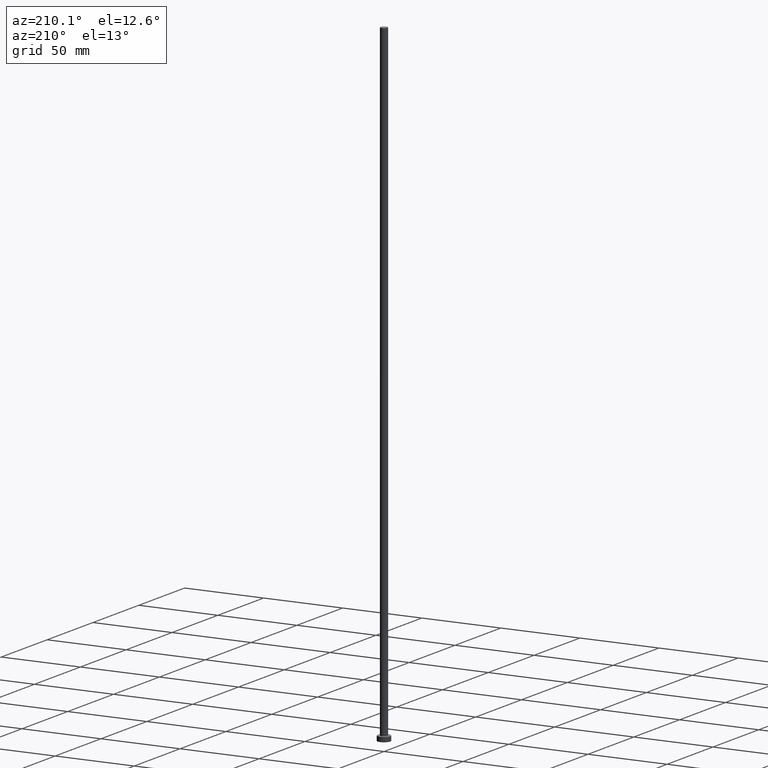
[diagram: clean part render]
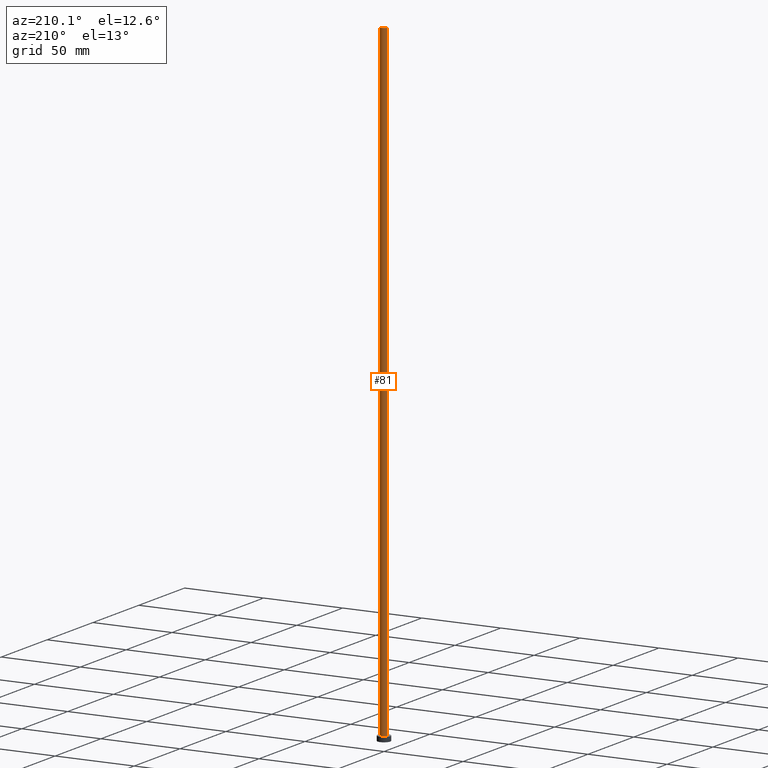
[diagram: same view with one face highlighted and labeled with its STEP entity id]
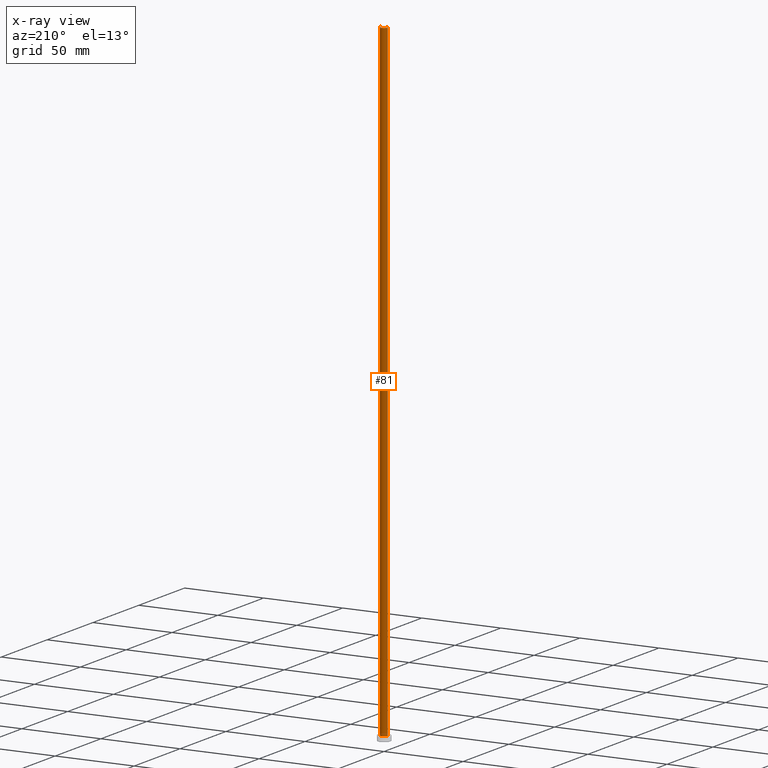
[diagram: x-ray of the same camera — body ghosted, the highlighted face saturated]
A machine part, auxiliary view. The second image highlights one B-rep face of the part: STEP entity #81.
The next image is the same camera in x-ray: the body ghosted, the highlighted face saturated — about 0% of this face is hidden behind the body in this view.
In plain terms, the highlighted cylindrical surface (edge-blend (fillet) strip) has radius 2.25 mm, axis along (-0, -0, -1).
Its self-contained STEP definition (entity closure, byte-faithful):
#3 = CARTESIAN_POINT ( 'NONE',  ( 0.000000000000000000, 0.000000000000000000, 3.000000000000000000 ) ) ;
#10 = CIRCLE ( 'NONE', #78, 2.250000000000000000 ) ;
#20 = EDGE_LOOP ( 'NONE', ( #221, #233, #127, #47 ) ) ;
#42 = DIRECTION ( 'NONE',  ( 0.000000000000000000, 0.000000000000000000, 1.000000000000000000 ) ) ;
#43 = CARTESIAN_POINT ( 'NONE',  ( 2.250000000000000000, 2.755455298081544285E-16, 400.0000000000000000 ) ) ;
#47 = ORIENTED_EDGE ( 'NONE', *, *, #117, .F. ) ;
#52 = VECTOR ( 'NONE', #120, 1000.000000000000000 ) ;
#61 = DIRECTION ( 'NONE',  ( -0.000000000000000000, -0.000000000000000000, -1.000000000000000000 ) ) ;
#63 = CARTESIAN_POINT ( 'NONE',  ( 2.250000000000000000, 2.755455298081544285E-16, 400.0000000000000000 ) ) ;
#65 = AXIS2_PLACEMENT_3D ( 'NONE', #144, #79, #179 ) ;
#69 = DIRECTION ( 'NONE',  ( 1.000000000000000000, 0.000000000000000000, 0.000000000000000000 ) ) ;
#78 = AXIS2_PLACEMENT_3D ( 'NONE', #160, #42, #96 ) ;
#79 = DIRECTION ( 'NONE',  ( -0.000000000000000000, -0.000000000000000000, -1.000000000000000000 ) ) ;
#81 = ADVANCED_FACE ( 'NONE', ( #84 ), #248, .T. ) ;
#83 = CARTESIAN_POINT ( 'NONE',  ( -2.250000000000000000, 0.000000000000000000, 400.0000000000000000 ) ) ;
#84 = FACE_OUTER_BOUND ( 'NONE', #20, .T. ) ;
#96 = DIRECTION ( 'NONE',  ( 1.000000000000000000, 0.000000000000000000, 0.000000000000000000 ) ) ;
#117 = EDGE_CURVE ( 'NONE', #165, #240, #137, .T. ) ;
#120 = DIRECTION ( 'NONE',  ( -0.000000000000000000, -0.000000000000000000, -1.000000000000000000 ) ) ;
#127 = ORIENTED_EDGE ( 'NONE', *, *, #254, .T. ) ;
#128 = EDGE_CURVE ( 'NONE', #147, #165, #10, .T. ) ;
#133 = AXIS2_PLACEMENT_3D ( 'NONE', #3, #187, #69 ) ;
#137 = LINE ( 'NONE', #193, #230 ) ;
#144 = CARTESIAN_POINT ( 'NONE',  ( 0.000000000000000000, 0.000000000000000000, 400.0000000000000000 ) ) ;
#147 = VERTEX_POINT ( 'NONE', #43 ) ;
#160 = CARTESIAN_POINT ( 'NONE',  ( 0.000000000000000000, 0.000000000000000000, 400.0000000000000000 ) ) ;
#165 = VERTEX_POINT ( 'NONE', #83 ) ;
#169 = CARTESIAN_POINT ( 'NONE',  ( -2.250000000000000000, 0.000000000000000000, 3.000000000000000000 ) ) ;
#179 = DIRECTION ( 'NONE',  ( -1.000000000000000000, 0.000000000000000000, 0.000000000000000000 ) ) ;
#187 = DIRECTION ( 'NONE',  ( 0.000000000000000000, 0.000000000000000000, 1.000000000000000000 ) ) ;
#190 = EDGE_CURVE ( 'NONE', #147, #212, #235, .T. ) ;
#193 = CARTESIAN_POINT ( 'NONE',  ( -2.250000000000000000, 0.000000000000000000, 400.0000000000000000 ) ) ;
#212 = VERTEX_POINT ( 'NONE', #213 ) ;
#213 = CARTESIAN_POINT ( 'NONE',  ( 2.250000000000000000, 2.755455298081544285E-16, 3.000000000000000000 ) ) ;
#221 = ORIENTED_EDGE ( 'NONE', *, *, #128, .F. ) ;
#230 = VECTOR ( 'NONE', #61, 1000.000000000000000 ) ;
#233 = ORIENTED_EDGE ( 'NONE', *, *, #190, .T. ) ;
#235 = LINE ( 'NONE', #63, #52 ) ;
#240 = VERTEX_POINT ( 'NONE', #169 ) ;
#248 = CYLINDRICAL_SURFACE ( 'NONE', #65, 2.250000000000000000 ) ;
#249 = CIRCLE ( 'NONE', #133, 2.250000000000000000 ) ;
#254 = EDGE_CURVE ( 'NONE', #212, #240, #249, .T. ) ;